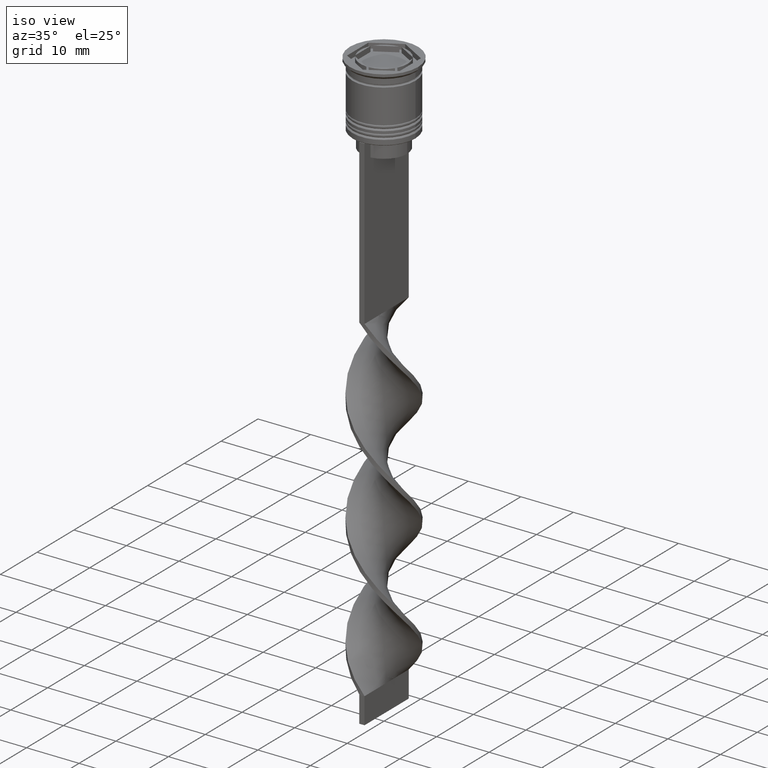
[diagram: clean part render]
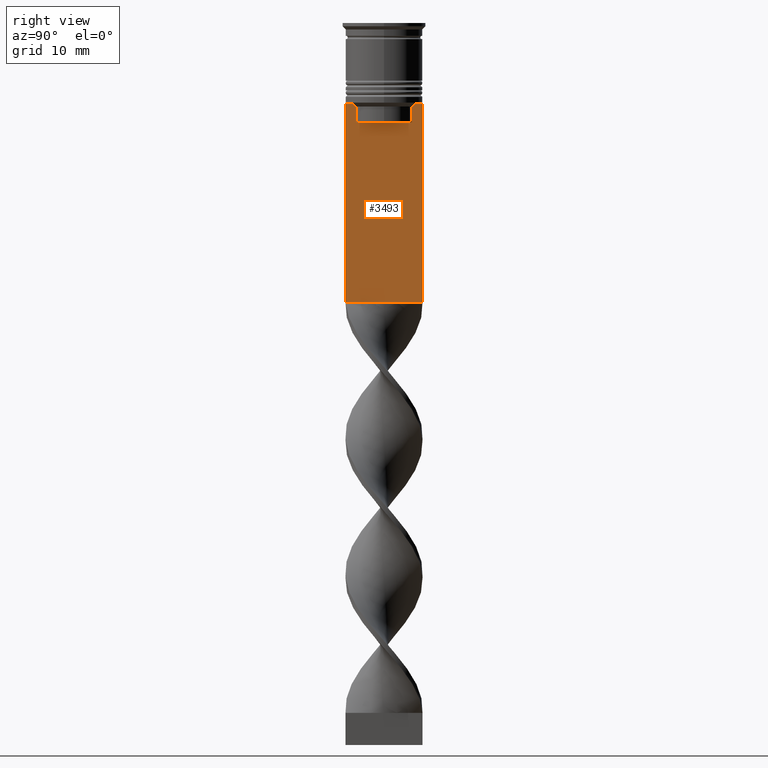
[diagram: tour spotlight — one face highlighted and labeled with its STEP entity id]
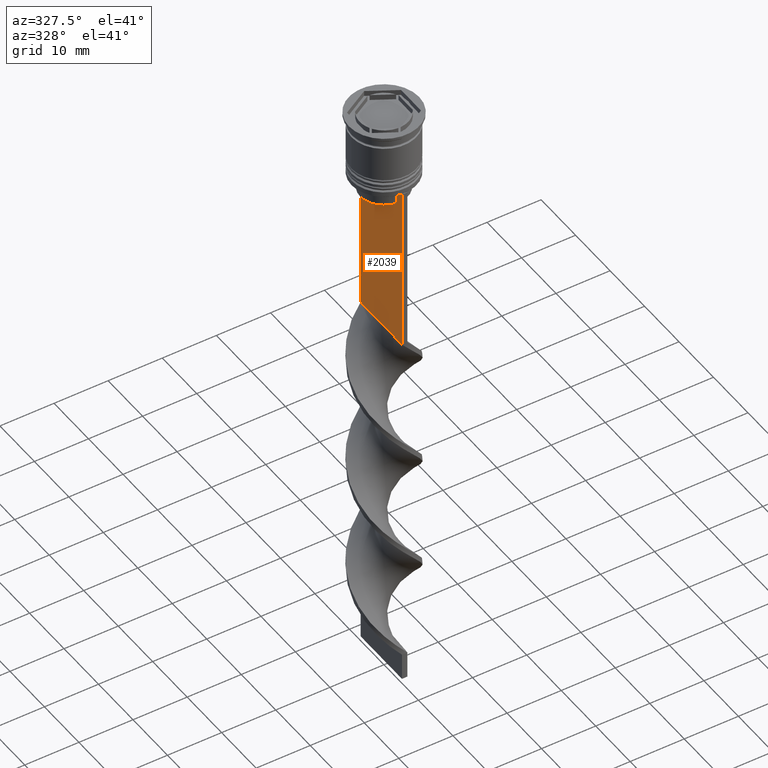
[diagram: tour spotlight — one face highlighted and labeled with its STEP entity id]
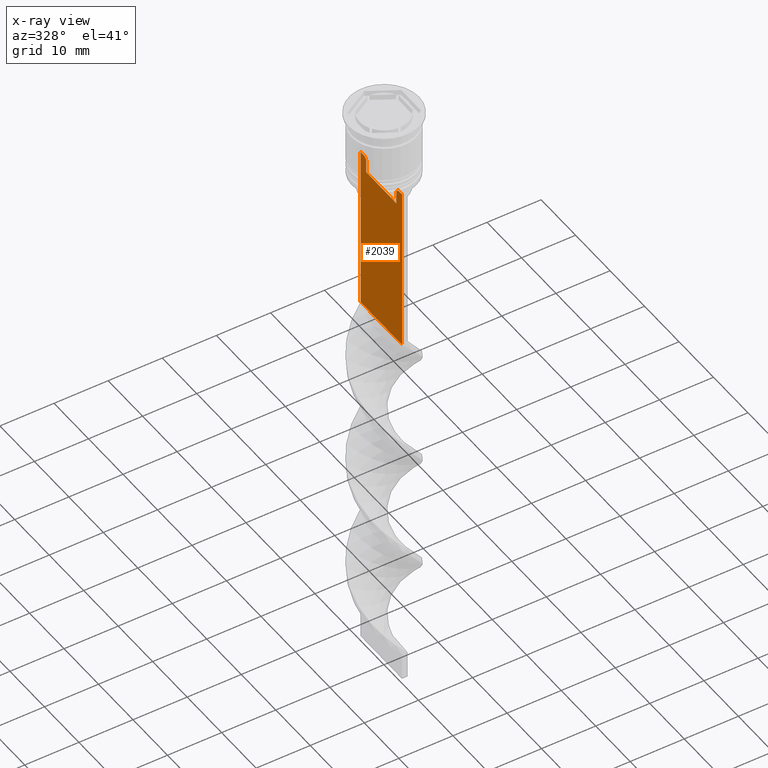
[diagram: x-ray of the same camera — body ghosted, this tour face saturated]
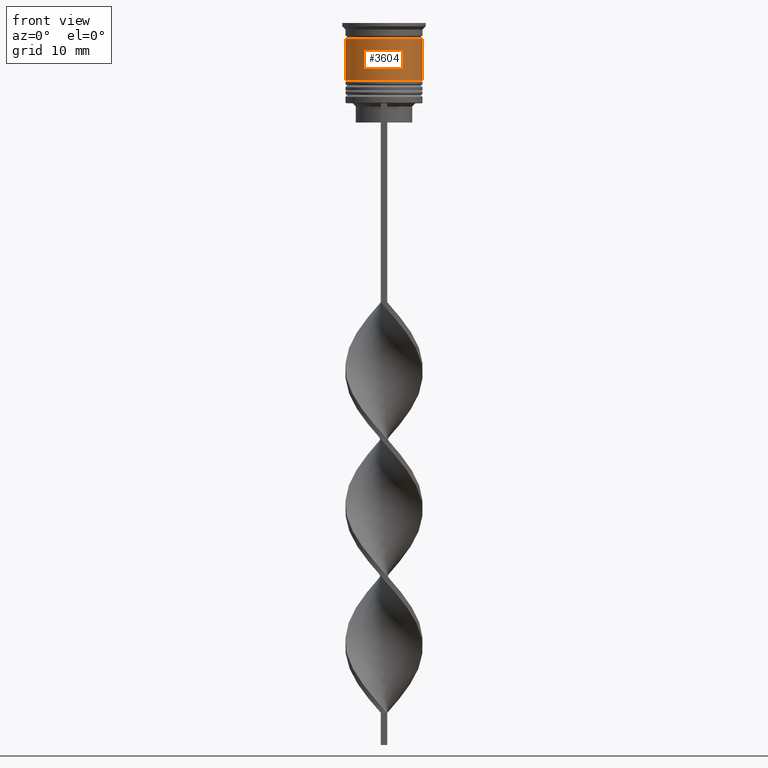
[diagram: tour spotlight — one face highlighted and labeled with its STEP entity id]
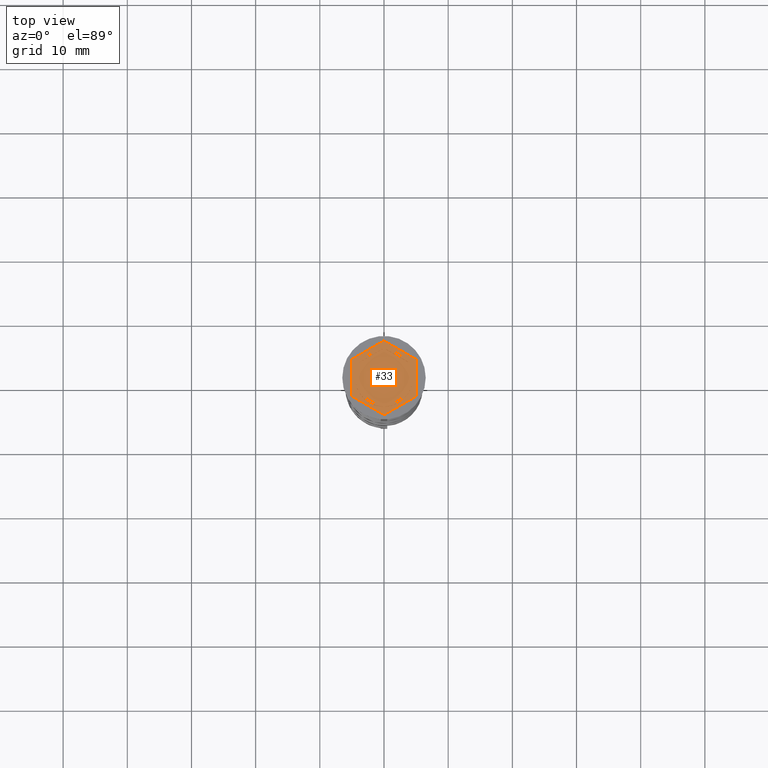
[diagram: tour spotlight — one face highlighted and labeled with its STEP entity id]
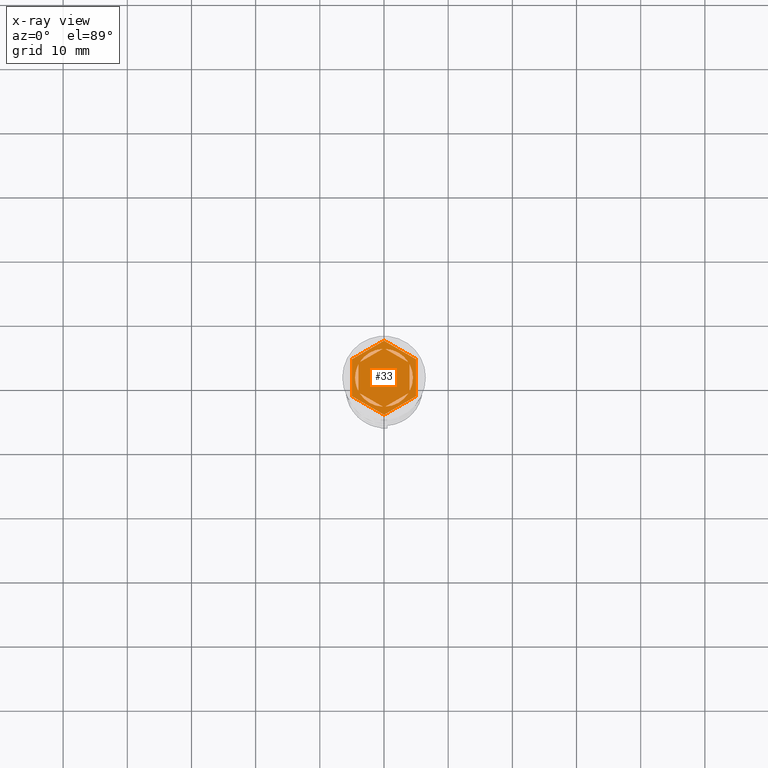
[diagram: x-ray of the same camera — body ghosted, this tour face saturated]
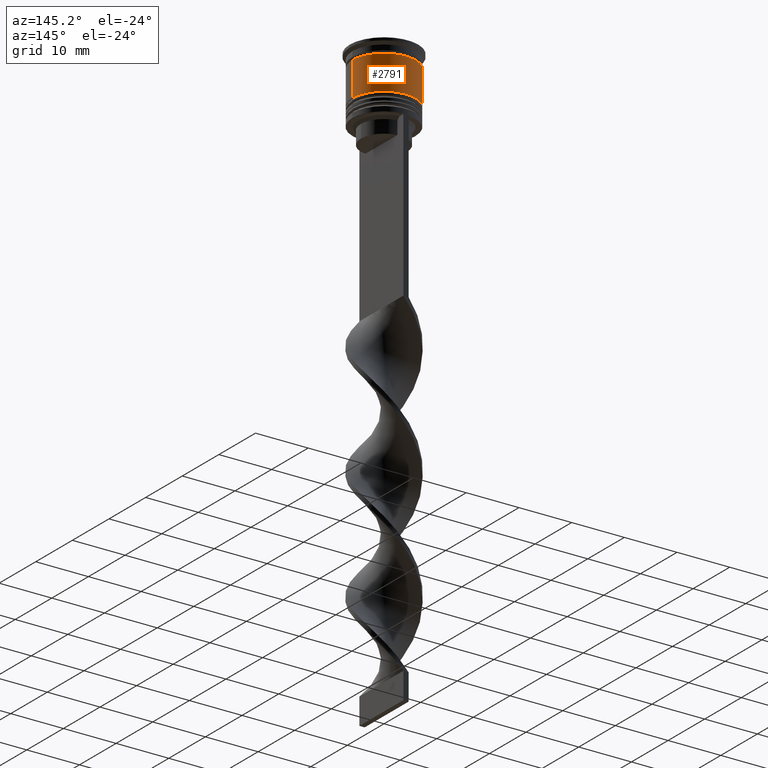
[diagram: tour spotlight — one face highlighted and labeled with its STEP entity id]
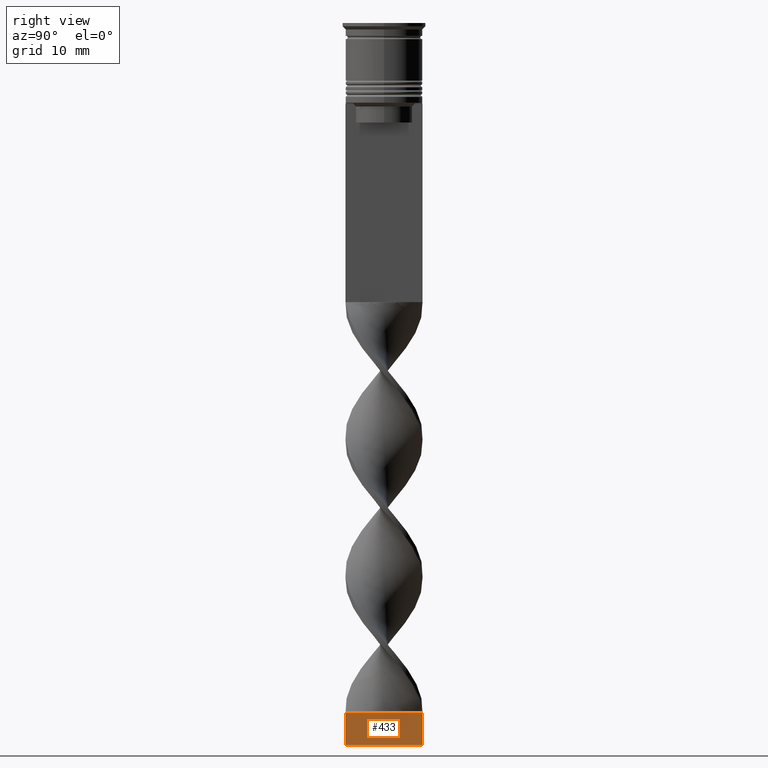
[diagram: tour spotlight — one face highlighted and labeled with its STEP entity id]
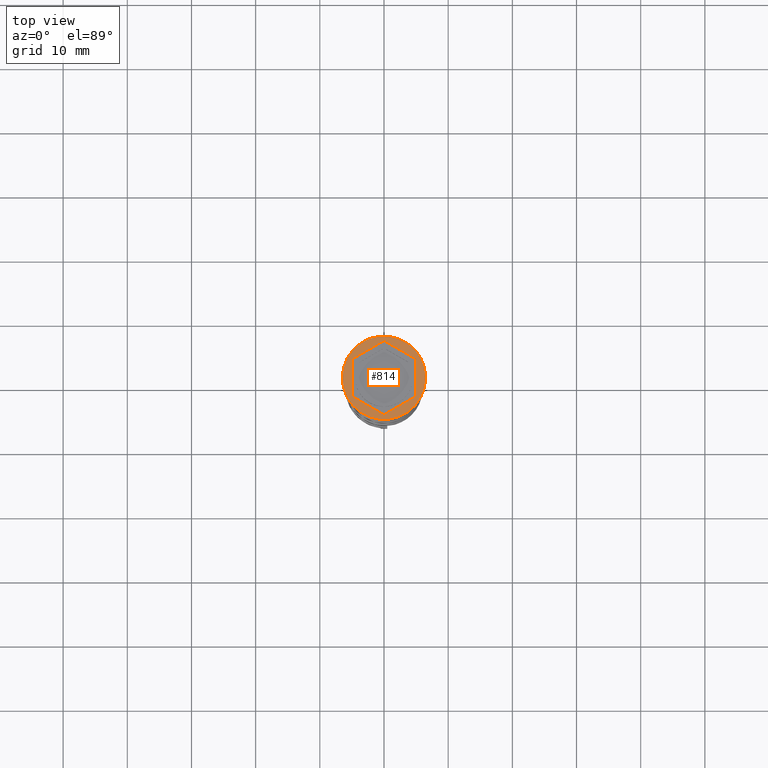
[diagram: tour spotlight — one face highlighted and labeled with its STEP entity id]
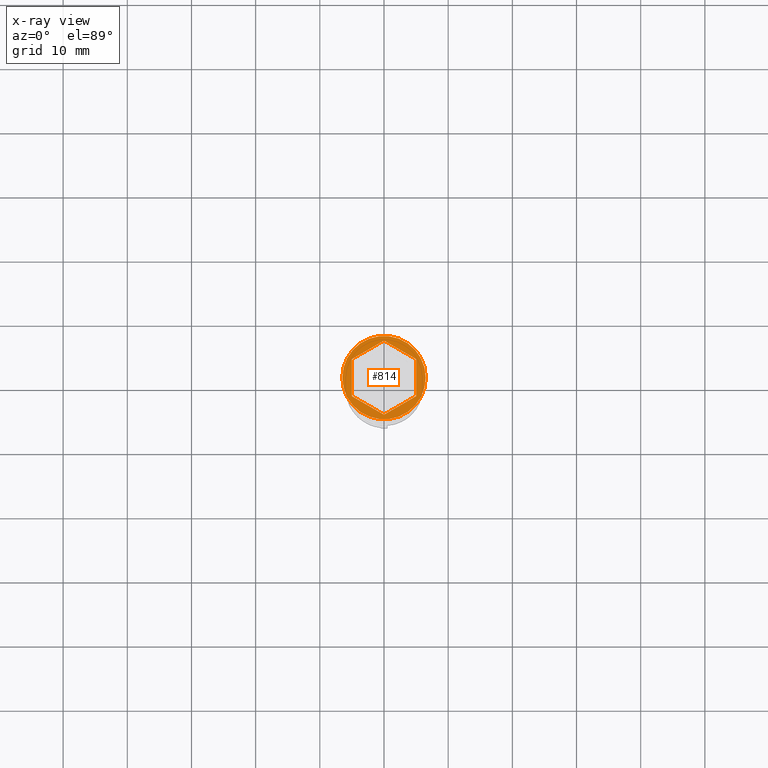
[diagram: x-ray of the same camera — body ghosted, this tour face saturated]
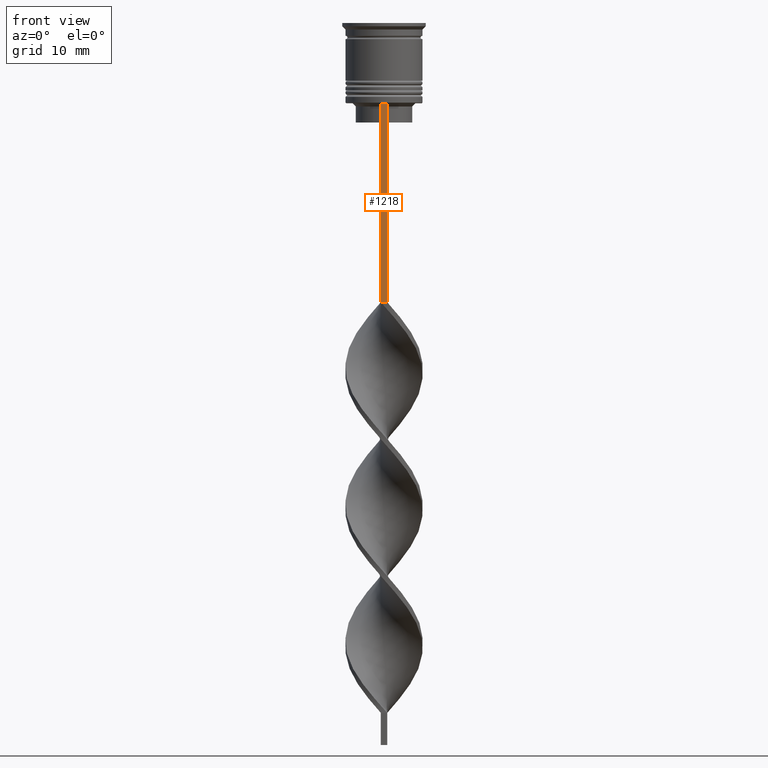
[diagram: tour spotlight — one face highlighted and labeled with its STEP entity id]
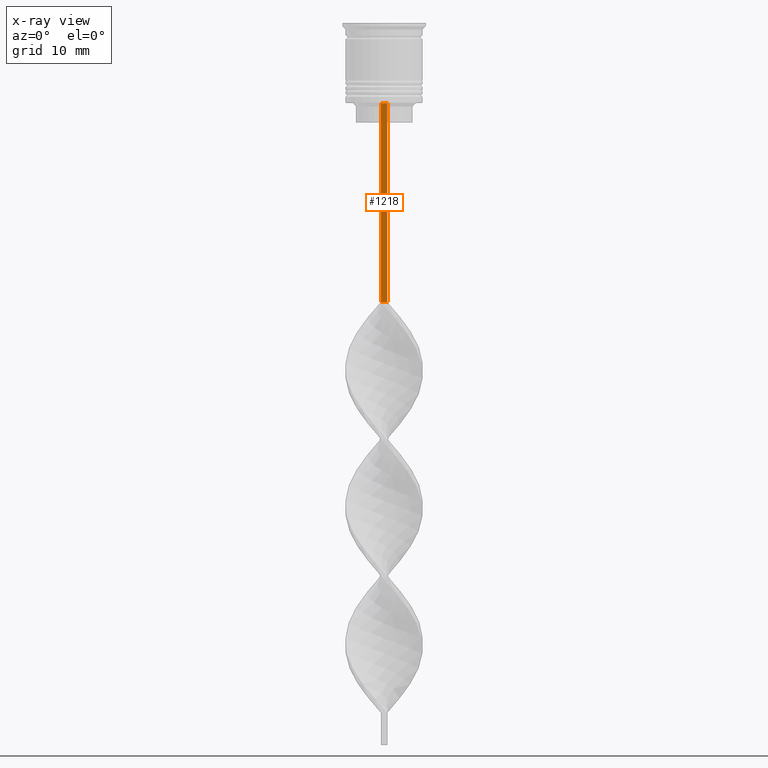
[diagram: x-ray of the same camera — body ghosted, this tour face saturated]
A machine part: a face-by-face anatomy tour. The part has 98 B-rep faces; the first image is the clean iso view, then the 8 largest visible faces are spotlighted one at a time (largest first), each with its STEP entity span.

Face 1 — right view, entity #3493. In plain terms, the highlighted planar face has unit normal (-1, 0, 0).
Definition (entity closure, byte-faithful):
#77 = DIRECTION ( 'NONE',  ( 0.000000000000000000, -1.000000000000000000, 0.000000000000000000 ) ) ;
#88 = EDGE_CURVE ( 'NONE', #701, #3278, #2685, .T. ) ;
#134 = LINE ( 'NONE', #2367, #2141 ) ;
#199 = DIRECTION ( 'NONE',  ( 0.000000000000000000, 1.000000000000000000, 0.000000000000000000 ) ) ;
#423 = VERTEX_POINT ( 'NONE', #639 ) ;
#448 = DIRECTION ( 'NONE',  ( 0.000000000000000000, 0.000000000000000000, -1.000000000000000000 ) ) ;
#468 = CARTESIAN_POINT ( 'NONE',  ( 0.5000000000000002220, -4.371498598878878816, -15.50000000000000000 ) ) ;
#494 = CARTESIAN_POINT ( 'NONE',  ( 0.5000000000000002220, 6.000000000000000888, -43.50000000000000000 ) ) ;
#570 = ORIENTED_EDGE ( 'NONE', *, *, #2025, .T. ) ;
#593 = DIRECTION ( 'NONE',  ( -0.000000000000000000, -0.000000000000000000, 1.000000000000000000 ) ) ;
#621 = LINE ( 'NONE', #1778, #1521 ) ;
#639 = CARTESIAN_POINT ( 'NONE',  ( 0.5000000000000002220, 4.371498598878878816, -13.00000000000000178 ) ) ;
#673 = EDGE_CURVE ( 'NONE', #1696, #880, #621, .T. ) ;
#676 = CARTESIAN_POINT ( 'NONE',  ( 0.5000000000000002220, 6.000000000000000888, -12.50000000000000000 ) ) ;
#701 = VERTEX_POINT ( 'NONE', #2845 ) ;
#727 = CARTESIAN_POINT ( 'NONE',  ( 0.5000000000000002220, -6.000000000000000000, -43.50000000000000000 ) ) ;
#794 = VERTEX_POINT ( 'NONE', #1265 ) ;
#811 = CARTESIAN_POINT ( 'NONE',  ( 0.5000000000000002220, -4.874423042781576676, -12.50000000000000000 ) ) ;
#828 = CARTESIAN_POINT ( 'NONE',  ( 0.5000000000000002220, 4.371498598878878816, -13.00000000000000178 ) ) ;
#840 = VERTEX_POINT ( 'NONE', #3489 ) ;
#852 = EDGE_CURVE ( 'NONE', #1319, #1343, #2669, .T. ) ;
#853 = AXIS2_PLACEMENT_3D ( 'NONE', #1275, #2967, #3200 ) ;
#865 = ORIENTED_EDGE ( 'NONE', *, *, #3085, .T. ) ;
#880 = VERTEX_POINT ( 'NONE', #1585 ) ;
#923 = LINE ( 'NONE', #2422, #1479 ) ;
#930 = VECTOR ( 'NONE', #2922, 1000.000000000000000 ) ;
#1091 = CARTESIAN_POINT ( 'NONE',  ( 0.5000000000000002220, -4.539195586926423331, -12.83338928448044314 ) ) ;
#1109 = CARTESIAN_POINT ( 'NONE',  ( 0.5000000000000002220, 4.874423042781576676, -12.50000000000000000 ) ) ;
#1195 = CARTESIAN_POINT ( 'NONE',  ( 0.5000000000000002220, -4.874423042781576676, -12.50000000000000000 ) ) ;
#1217 = DIRECTION ( 'NONE',  ( 0.000000000000000000, -1.000000000000000000, 0.000000000000000000 ) ) ;
#1265 = CARTESIAN_POINT ( 'NONE',  ( 0.5000000000000002220, 5.878775382679627626, -12.50000000000000000 ) ) ;
#1275 = CARTESIAN_POINT ( 'NONE',  ( 0.5000000000000002220, -6.000000000000000000, -0.4584054212077061097 ) ) ;
#1319 = VERTEX_POINT ( 'NONE', #2149 ) ;
#1329 = CARTESIAN_POINT ( 'NONE',  ( 0.5000000000000002220, -6.000000000000000000, -0.4584054212077061097 ) ) ;
#1335 = EDGE_CURVE ( 'NONE', #2219, #3278, #1604, .T. ) ;
#1341 = EDGE_CURVE ( 'NONE', #880, #701, #1752, .T. ) ;
#1343 = VERTEX_POINT ( 'NONE', #468 ) ;
#1369 = ORIENTED_EDGE ( 'NONE', *, *, #1341, .T. ) ;
#1398 = EDGE_CURVE ( 'NONE', #423, #1319, #923, .T. ) ;
#1424 = ORIENTED_EDGE ( 'NONE', *, *, #1398, .T. ) ;
#1455 = VERTEX_POINT ( 'NONE', #1195 ) ;
#1479 = VECTOR ( 'NONE', #448, 1000.000000000000000 ) ;
#1488 = VECTOR ( 'NONE', #2441, 1000.000000000000000 ) ;
#1521 = VECTOR ( 'NONE', #77, 1000.000000000000000 ) ;
#1585 = CARTESIAN_POINT ( 'NONE',  ( 0.5000000000000002220, -6.000000000000000000, -12.50000000000000000 ) ) ;
#1602 = EDGE_CURVE ( 'NONE', #794, #2511, #134, .T. ) ;
#1604 = LINE ( 'NONE', #2706, #3233 ) ;
#1696 = VERTEX_POINT ( 'NONE', #3004 ) ;
#1752 = LINE ( 'NONE', #1329, #1488 ) ;
#1778 = CARTESIAN_POINT ( 'NONE',  ( 0.5000000000000002220, -6.000000000000000000, -12.50000000000000000 ) ) ;
#1821 = B_SPLINE_CURVE_WITH_KNOTS ( 'NONE', 3,
 ( #2494, #1091, #3311, #811 ),
 .UNSPECIFIED., .F., .F.,
 ( 4, 4 ),
 ( 0.02089901220910808308, 0.02161421017310286019 ),
 .UNSPECIFIED. ) ;
#1995 = EDGE_CURVE ( 'NONE', #1343, #840, #2761, .T. ) ;
#2008 = LINE ( 'NONE', #2024, #2959 ) ;
#2024 = CARTESIAN_POINT ( 'NONE',  ( 0.5000000000000002220, -6.000000000000000000, -12.50000000000000000 ) ) ;
#2025 = EDGE_CURVE ( 'NONE', #840, #1455, #1821, .T. ) ;
#2032 = ORIENTED_EDGE ( 'NONE', *, *, #1335, .F. ) ;
#2111 = DIRECTION ( 'NONE',  ( 0.000000000000000000, 0.000000000000000000, -1.000000000000000000 ) ) ;
#2141 = VECTOR ( 'NONE', #3202, 1000.000000000000000 ) ;
#2149 = CARTESIAN_POINT ( 'NONE',  ( 0.5000000000000002220, 4.371498598878878816, -15.50000000000000000 ) ) ;
#2219 = VERTEX_POINT ( 'NONE', #676 ) ;
#2222 = CARTESIAN_POINT ( 'NONE',  ( 0.5000000000000002220, 4.539195634199896467, -12.83338923751318816 ) ) ;
#2349 = ORIENTED_EDGE ( 'NONE', *, *, #2836, .T. ) ;
#2367 = CARTESIAN_POINT ( 'NONE',  ( 0.5000000000000002220, -6.000000000000000000, -12.50000000000000000 ) ) ;
#2381 = DIRECTION ( 'NONE',  ( 0.000000000000000000, -1.000000000000000000, 0.000000000000000000 ) ) ;
#2422 = CARTESIAN_POINT ( 'NONE',  ( 0.5000000000000002220, 4.371498598878878816, 0.000000000000000000 ) ) ;
#2441 = DIRECTION ( 'NONE',  ( 0.000000000000000000, 0.000000000000000000, -1.000000000000000000 ) ) ;
#2480 = CARTESIAN_POINT ( 'NONE',  ( 0.5000000000000002220, 4.706831415367288329, -12.66671683478479160 ) ) ;
#2494 = CARTESIAN_POINT ( 'NONE',  ( 0.5000000000000002220, -4.371498598878878816, -13.00000000000000178 ) ) ;
#2511 = VERTEX_POINT ( 'NONE', #3585 ) ;
#2547 = ORIENTED_EDGE ( 'NONE', *, *, #673, .T. ) ;
#2612 = VECTOR ( 'NONE', #199, 1000.000000000000000 ) ;
#2648 = LINE ( 'NONE', #2882, #3302 ) ;
#2666 = ORIENTED_EDGE ( 'NONE', *, *, #88, .T. ) ;
#2669 = LINE ( 'NONE', #2689, #930 ) ;
#2680 = EDGE_LOOP ( 'NONE', ( #2910, #3457, #1424, #3037, #3199, #570, #865, #2547, #1369, #2666, #2032, #2349 ) ) ;
#2685 = LINE ( 'NONE', #727, #2612 ) ;
#2689 = CARTESIAN_POINT ( 'NONE',  ( 0.5000000000000002220, 4.399999999999999467, -15.50000000000000000 ) ) ;
#2706 = CARTESIAN_POINT ( 'NONE',  ( 0.5000000000000002220, 6.000000000000000888, -0.4584054212077061097 ) ) ;
#2761 = LINE ( 'NONE', #3094, #3181 ) ;
#2790 = B_SPLINE_CURVE_WITH_KNOTS ( 'NONE', 3,
 ( #1109, #2480, #2222, #828 ),
 .UNSPECIFIED., .F., .F.,
 ( 4, 4 ),
 ( 0.008336552452178421987, 0.009045730124312839626 ),
 .UNSPECIFIED. ) ;
#2836 = EDGE_CURVE ( 'NONE', #2219, #794, #2648, .T. ) ;
#2845 = CARTESIAN_POINT ( 'NONE',  ( 0.5000000000000002220, -5.999999999999999112, -43.50000000000000000 ) ) ;
#2882 = CARTESIAN_POINT ( 'NONE',  ( 0.5000000000000002220, -6.000000000000000000, -12.50000000000000000 ) ) ;
#2910 = ORIENTED_EDGE ( 'NONE', *, *, #1602, .T. ) ;
#2922 = DIRECTION ( 'NONE',  ( 0.000000000000000000, -1.000000000000000000, 0.000000000000000000 ) ) ;
#2959 = VECTOR ( 'NONE', #1217, 1000.000000000000000 ) ;
#2967 = DIRECTION ( 'NONE',  ( -1.000000000000000000, 0.000000000000000000, 0.000000000000000000 ) ) ;
#3004 = CARTESIAN_POINT ( 'NONE',  ( 0.5000000000000002220, -5.878775382679627626, -12.50000000000000000 ) ) ;
#3037 = ORIENTED_EDGE ( 'NONE', *, *, #852, .T. ) ;
#3085 = EDGE_CURVE ( 'NONE', #1455, #1696, #2008, .T. ) ;
#3094 = CARTESIAN_POINT ( 'NONE',  ( 0.5000000000000002220, -4.371498598878878816, 0.000000000000000000 ) ) ;
#3181 = VECTOR ( 'NONE', #593, 1000.000000000000000 ) ;
#3199 = ORIENTED_EDGE ( 'NONE', *, *, #1995, .T. ) ;
#3200 = DIRECTION ( 'NONE',  ( 0.000000000000000000, 0.000000000000000000, 1.000000000000000000 ) ) ;
#3202 = DIRECTION ( 'NONE',  ( 0.000000000000000000, -1.000000000000000000, 0.000000000000000000 ) ) ;
#3218 = FACE_OUTER_BOUND ( 'NONE', #2680, .T. ) ;
#3233 = VECTOR ( 'NONE', #2111, 1000.000000000000000 ) ;
#3278 = VERTEX_POINT ( 'NONE', #494 ) ;
#3302 = VECTOR ( 'NONE', #2381, 1000.000000000000000 ) ;
#3311 = CARTESIAN_POINT ( 'NONE',  ( 0.5000000000000002220, -4.706831372970962768, -12.66671687695981774 ) ) ;
#3396 = EDGE_CURVE ( 'NONE', #2511, #423, #2790, .T. ) ;
#3457 = ORIENTED_EDGE ( 'NONE', *, *, #3396, .T. ) ;
#3489 = CARTESIAN_POINT ( 'NONE',  ( 0.5000000000000002220, -4.371498598878878816, -13.00000000000000178 ) ) ;
#3493 = ADVANCED_FACE ( 'NONE', ( #3218 ), #3552, .F. ) ;
#3552 = PLANE ( 'NONE',  #853 ) ;
#3585 = CARTESIAN_POINT ( 'NONE',  ( 0.5000000000000002220, 4.874423042781576676, -12.50000000000000000 ) ) ;

Face 2 — auxiliary view, entity #2039. An x-ray twin of the same camera follows (body ghosted, this face saturated) — the face is partly hidden behind the body. In plain terms, the highlighted planar face has unit normal (-1, 0, 0).
Definition (entity closure, byte-faithful):
#34 = VERTEX_POINT ( 'NONE', #3238 ) ;
#62 = VECTOR ( 'NONE', #2605, 1000.000000000000000 ) ;
#115 = CARTESIAN_POINT ( 'NONE',  ( -0.4999999999999997780, -4.874423042781576676, -12.50000000000000000 ) ) ;
#150 = ORIENTED_EDGE ( 'NONE', *, *, #545, .F. ) ;
#158 = EDGE_CURVE ( 'NONE', #779, #3057, #2919, .T. ) ;
#169 = VERTEX_POINT ( 'NONE', #401 ) ;
#210 = CARTESIAN_POINT ( 'NONE',  ( -0.4999999999999997780, 4.371498598878878816, -15.50000000000000000 ) ) ;
#244 = VECTOR ( 'NONE', #821, 1000.000000000000000 ) ;
#270 = CARTESIAN_POINT ( 'NONE',  ( -0.4999999999999997780, -4.371498598878878816, 0.000000000000000000 ) ) ;
#287 = DIRECTION ( 'NONE',  ( 0.000000000000000000, 0.000000000000000000, 1.000000000000000000 ) ) ;
#316 = CARTESIAN_POINT ( 'NONE',  ( -0.4999999999999997780, -4.371498598878878816, -15.50000000000000000 ) ) ;
#381 = CARTESIAN_POINT ( 'NONE',  ( -0.4999999999999997780, -4.706831372970964544, -12.66671687695981596 ) ) ;
#386 = CARTESIAN_POINT ( 'NONE',  ( -0.4999999999999997780, 4.371498598878878816, -13.00000000000000178 ) ) ;
#396 = CARTESIAN_POINT ( 'NONE',  ( -0.4999999999999997780, -6.000000000000000000, -43.50000000000000000 ) ) ;
#401 = CARTESIAN_POINT ( 'NONE',  ( -0.4999999999999997780, 4.371498598878878816, -13.00000000000000178 ) ) ;
#413 = CARTESIAN_POINT ( 'NONE',  ( -0.4999999999999997780, -4.371498598878878816, -13.00000000000000178 ) ) ;
#415 = EDGE_CURVE ( 'NONE', #34, #1175, #2606, .T. ) ;
#481 = ORIENTED_EDGE ( 'NONE', *, *, #2116, .F. ) ;
#525 = DIRECTION ( 'NONE',  ( -0.000000000000000000, -0.000000000000000000, 1.000000000000000000 ) ) ;
#545 = EDGE_CURVE ( 'NONE', #1789, #722, #1959, .T. ) ;
#552 = DIRECTION ( 'NONE',  ( -1.000000000000000000, 0.000000000000000000, 0.000000000000000000 ) ) ;
#555 = ORIENTED_EDGE ( 'NONE', *, *, #2279, .F. ) ;
#616 = B_SPLINE_CURVE_WITH_KNOTS ( 'NONE', 3,
 ( #1790, #2621, #381, #115 ),
 .UNSPECIFIED., .F., .F.,
 ( 4, 4 ),
 ( 0.02089901220910806920, 0.02161421017310284978 ),
 .UNSPECIFIED. ) ;
#655 = DIRECTION ( 'NONE',  ( 0.000000000000000000, -1.000000000000000000, 0.000000000000000000 ) ) ;
#688 = CARTESIAN_POINT ( 'NONE',  ( -0.4999999999999997780, 6.000000000000000888, -43.50000000000000000 ) ) ;
#708 = LINE ( 'NONE', #1834, #62 ) ;
#722 = VERTEX_POINT ( 'NONE', #316 ) ;
#779 = VERTEX_POINT ( 'NONE', #2902 ) ;
#821 = DIRECTION ( 'NONE',  ( 0.000000000000000000, -1.000000000000000000, 0.000000000000000000 ) ) ;
#851 = DIRECTION ( 'NONE',  ( 0.000000000000000000, 0.000000000000000000, -1.000000000000000000 ) ) ;
#856 = CARTESIAN_POINT ( 'NONE',  ( -0.4999999999999997780, -6.000000000000000000, -12.50000000000000000 ) ) ;
#949 = DIRECTION ( 'NONE',  ( 0.000000000000000000, -1.000000000000000000, 0.000000000000000000 ) ) ;
#964 = DIRECTION ( 'NONE',  ( 0.000000000000000000, 1.000000000000000000, 0.000000000000000000 ) ) ;
#965 = VERTEX_POINT ( 'NONE', #2721 ) ;
#976 = VECTOR ( 'NONE', #3068, 1000.000000000000000 ) ;
#986 = ORIENTED_EDGE ( 'NONE', *, *, #415, .F. ) ;
#1011 = VERTEX_POINT ( 'NONE', #3011 ) ;
#1069 = EDGE_CURVE ( 'NONE', #2541, #965, #1738, .T. ) ;
#1175 = VERTEX_POINT ( 'NONE', #2372 ) ;
#1205 = CARTESIAN_POINT ( 'NONE',  ( -0.4999999999999997780, -6.000000000000000000, -12.50000000000000000 ) ) ;
#1248 = ORIENTED_EDGE ( 'NONE', *, *, #2196, .F. ) ;
#1261 = EDGE_CURVE ( 'NONE', #1011, #3249, #708, .T. ) ;
#1317 = ORIENTED_EDGE ( 'NONE', *, *, #2688, .F. ) ;
#1467 = CARTESIAN_POINT ( 'NONE',  ( -0.4999999999999997780, 4.539195634199897356, -12.83338923751318816 ) ) ;
#1560 = CARTESIAN_POINT ( 'NONE',  ( -0.4999999999999997780, -6.000000000000000000, -12.50000000000000000 ) ) ;
#1565 = AXIS2_PLACEMENT_3D ( 'NONE', #1934, #552, #287 ) ;
#1667 = EDGE_CURVE ( 'NONE', #965, #3249, #2057, .T. ) ;
#1738 = LINE ( 'NONE', #2009, #2565 ) ;
#1744 = CARTESIAN_POINT ( 'NONE',  ( -0.4999999999999997780, 4.874423042781576676, -12.50000000000000000 ) ) ;
#1789 = VERTEX_POINT ( 'NONE', #210 ) ;
#1790 = CARTESIAN_POINT ( 'NONE',  ( -0.4999999999999997780, -4.371498598878878816, -13.00000000000000178 ) ) ;
#1796 = VECTOR ( 'NONE', #2865, 1000.000000000000000 ) ;
#1797 = CARTESIAN_POINT ( 'NONE',  ( -0.4999999999999997780, -6.000000000000000000, -12.50000000000000000 ) ) ;
#1810 = ORIENTED_EDGE ( 'NONE', *, *, #1920, .F. ) ;
#1813 = VECTOR ( 'NONE', #655, 1000.000000000000000 ) ;
#1834 = CARTESIAN_POINT ( 'NONE',  ( -0.4999999999999997780, 6.000000000000000888, -0.4584054212077061097 ) ) ;
#1920 = EDGE_CURVE ( 'NONE', #722, #3563, #2546, .T. ) ;
#1934 = CARTESIAN_POINT ( 'NONE',  ( -0.4999999999999997780, -6.000000000000000000, -0.4584054212077061097 ) ) ;
#1959 = LINE ( 'NONE', #3066, #244 ) ;
#1993 = ORIENTED_EDGE ( 'NONE', *, *, #3172, .F. ) ;
#2009 = CARTESIAN_POINT ( 'NONE',  ( -0.4999999999999997780, -6.000000000000000000, -0.4584054212077061097 ) ) ;
#2039 = ADVANCED_FACE ( 'NONE', ( #3020 ), #2233, .T. ) ;
#2048 = CARTESIAN_POINT ( 'NONE',  ( -0.4999999999999997780, 4.706831415367290106, -12.66671683478478982 ) ) ;
#2057 = LINE ( 'NONE', #396, #2716 ) ;
#2095 = EDGE_LOOP ( 'NONE', ( #555, #986, #1317, #3359, #2098, #2311, #481, #2221, #1993, #1810, #150, #1248 ) ) ;
#2098 = ORIENTED_EDGE ( 'NONE', *, *, #1667, .F. ) ;
#2116 = EDGE_CURVE ( 'NONE', #3057, #2541, #3018, .T. ) ;
#2195 = VECTOR ( 'NONE', #3570, 1000.000000000000000 ) ;
#2196 = EDGE_CURVE ( 'NONE', #169, #1789, #2811, .T. ) ;
#2221 = ORIENTED_EDGE ( 'NONE', *, *, #158, .F. ) ;
#2233 = PLANE ( 'NONE',  #1565 ) ;
#2279 = EDGE_CURVE ( 'NONE', #1175, #169, #2510, .T. ) ;
#2311 = ORIENTED_EDGE ( 'NONE', *, *, #1069, .F. ) ;
#2372 = CARTESIAN_POINT ( 'NONE',  ( -0.4999999999999997780, 4.874423042781576676, -12.50000000000000000 ) ) ;
#2462 = CARTESIAN_POINT ( 'NONE',  ( -0.4999999999999997780, 4.371498598878878816, 0.000000000000000000 ) ) ;
#2510 = B_SPLINE_CURVE_WITH_KNOTS ( 'NONE', 3,
 ( #1744, #2048, #1467, #386 ),
 .UNSPECIFIED., .F., .F.,
 ( 4, 4 ),
 ( 0.008336552452178418518, 0.009045730124312837891 ),
 .UNSPECIFIED. ) ;
#2541 = VERTEX_POINT ( 'NONE', #856 ) ;
#2546 = LINE ( 'NONE', #270, #3062 ) ;
#2565 = VECTOR ( 'NONE', #851, 1000.000000000000000 ) ;
#2605 = DIRECTION ( 'NONE',  ( 0.000000000000000000, 0.000000000000000000, -1.000000000000000000 ) ) ;
#2606 = LINE ( 'NONE', #1797, #1813 ) ;
#2621 = CARTESIAN_POINT ( 'NONE',  ( -0.4999999999999997780, -4.539195586926424220, -12.83338928448044136 ) ) ;
#2688 = EDGE_CURVE ( 'NONE', #1011, #34, #2846, .T. ) ;
#2716 = VECTOR ( 'NONE', #964, 1000.000000000000000 ) ;
#2721 = CARTESIAN_POINT ( 'NONE',  ( -0.4999999999999997780, -6.000000000000000000, -43.50000000000000000 ) ) ;
#2759 = CARTESIAN_POINT ( 'NONE',  ( -0.4999999999999997780, -6.000000000000000000, -12.50000000000000000 ) ) ;
#2786 = CARTESIAN_POINT ( 'NONE',  ( -0.4999999999999997780, -5.878775382679627626, -12.50000000000000000 ) ) ;
#2811 = LINE ( 'NONE', #2462, #2195 ) ;
#2846 = LINE ( 'NONE', #1205, #1796 ) ;
#2865 = DIRECTION ( 'NONE',  ( 0.000000000000000000, -1.000000000000000000, 0.000000000000000000 ) ) ;
#2902 = CARTESIAN_POINT ( 'NONE',  ( -0.4999999999999997780, -4.874423042781576676, -12.50000000000000000 ) ) ;
#2919 = LINE ( 'NONE', #1560, #3259 ) ;
#3011 = CARTESIAN_POINT ( 'NONE',  ( -0.4999999999999997780, 6.000000000000001776, -12.50000000000000000 ) ) ;
#3018 = LINE ( 'NONE', #2759, #976 ) ;
#3020 = FACE_OUTER_BOUND ( 'NONE', #2095, .T. ) ;
#3057 = VERTEX_POINT ( 'NONE', #2786 ) ;
#3062 = VECTOR ( 'NONE', #525, 1000.000000000000000 ) ;
#3066 = CARTESIAN_POINT ( 'NONE',  ( -0.4999999999999997780, 4.399999999999999467, -15.50000000000000000 ) ) ;
#3068 = DIRECTION ( 'NONE',  ( 0.000000000000000000, -1.000000000000000000, 0.000000000000000000 ) ) ;
#3172 = EDGE_CURVE ( 'NONE', #3563, #779, #616, .T. ) ;
#3238 = CARTESIAN_POINT ( 'NONE',  ( -0.4999999999999997780, 5.878775382679627626, -12.50000000000000000 ) ) ;
#3249 = VERTEX_POINT ( 'NONE', #688 ) ;
#3259 = VECTOR ( 'NONE', #949, 1000.000000000000000 ) ;
#3359 = ORIENTED_EDGE ( 'NONE', *, *, #1261, .T. ) ;
#3563 = VERTEX_POINT ( 'NONE', #413 ) ;
#3570 = DIRECTION ( 'NONE',  ( 0.000000000000000000, 0.000000000000000000, -1.000000000000000000 ) ) ;

Face 3 — front view, entity #3604. In plain terms, the highlighted cylindrical surface (partial cylindrical patch) has radius 6 mm, axis along (-0, -0, 1).
Definition (entity closure, byte-faithful):
#63 = CARTESIAN_POINT ( 'NONE',  ( -6.000000000000001776, 7.347880794884121708E-16, -9.000000000000001776 ) ) ;
#69 = ORIENTED_EDGE ( 'NONE', *, *, #2133, .T. ) ;
#160 = LINE ( 'NONE', #1245, #2683 ) ;
#209 = VERTEX_POINT ( 'NONE', #644 ) ;
#368 = CARTESIAN_POINT ( 'NONE',  ( 5.999999999999999112, 0.000000000000000000, -2.500000000000000444 ) ) ;
#419 = EDGE_CURVE ( 'NONE', #209, #687, #911, .T. ) ;
#484 = DIRECTION ( 'NONE',  ( -0.000000000000000000, -0.000000000000000000, 1.000000000000000000 ) ) ;
#568 = DIRECTION ( 'NONE',  ( 1.000000000000000000, 0.000000000000000000, 0.000000000000000000 ) ) ;
#644 = CARTESIAN_POINT ( 'NONE',  ( 6.000000000000000888, 0.000000000000000000, -9.000000000000001776 ) ) ;
#664 = DIRECTION ( 'NONE',  ( -0.000000000000000000, -0.000000000000000000, 1.000000000000000000 ) ) ;
#687 = VERTEX_POINT ( 'NONE', #368 ) ;
#790 = CARTESIAN_POINT ( 'NONE',  ( 0.000000000000000000, 0.000000000000000000, 0.000000000000000000 ) ) ;
#808 = FACE_OUTER_BOUND ( 'NONE', #3039, .T. ) ;
#809 = EDGE_CURVE ( 'NONE', #2576, #3312, #160, .T. ) ;
#911 = LINE ( 'NONE', #2028, #1399 ) ;
#925 = DIRECTION ( 'NONE',  ( 1.000000000000000000, 0.000000000000000000, 0.000000000000000000 ) ) ;
#1245 = CARTESIAN_POINT ( 'NONE',  ( -6.000000000000000000, 7.347880794884119736E-16, 0.000000000000000000 ) ) ;
#1322 = ORIENTED_EDGE ( 'NONE', *, *, #1514, .F. ) ;
#1399 = VECTOR ( 'NONE', #3136, 1000.000000000000000 ) ;
#1437 = ORIENTED_EDGE ( 'NONE', *, *, #419, .T. ) ;
#1509 = AXIS2_PLACEMENT_3D ( 'NONE', #790, #2778, #3358 ) ;
#1514 = EDGE_CURVE ( 'NONE', #3312, #687, #1776, .T. ) ;
#1628 = ORIENTED_EDGE ( 'NONE', *, *, #809, .F. ) ;
#1776 = CIRCLE ( 'NONE', #2434, 5.999999999999999112 ) ;
#1904 = CARTESIAN_POINT ( 'NONE',  ( -5.999999999999999112, 7.347880794884118750E-16, -2.500000000000000444 ) ) ;
#1930 = CARTESIAN_POINT ( 'NONE',  ( 0.000000000000000000, 0.000000000000000000, -9.000000000000001776 ) ) ;
#1963 = CIRCLE ( 'NONE', #3477, 6.000000000000000888 ) ;
#2028 = CARTESIAN_POINT ( 'NONE',  ( 6.000000000000000000, 0.000000000000000000, 0.000000000000000000 ) ) ;
#2133 = EDGE_CURVE ( 'NONE', #2576, #209, #1963, .T. ) ;
#2218 = DIRECTION ( 'NONE',  ( -0.000000000000000000, -0.000000000000000000, 1.000000000000000000 ) ) ;
#2434 = AXIS2_PLACEMENT_3D ( 'NONE', #2914, #664, #925 ) ;
#2576 = VERTEX_POINT ( 'NONE', #63 ) ;
#2683 = VECTOR ( 'NONE', #484, 1000.000000000000000 ) ;
#2778 = DIRECTION ( 'NONE',  ( -0.000000000000000000, -0.000000000000000000, 1.000000000000000000 ) ) ;
#2914 = CARTESIAN_POINT ( 'NONE',  ( 0.000000000000000000, 0.000000000000000000, -2.500000000000000444 ) ) ;
#3039 = EDGE_LOOP ( 'NONE', ( #1628, #69, #1437, #1322 ) ) ;
#3136 = DIRECTION ( 'NONE',  ( -0.000000000000000000, -0.000000000000000000, 1.000000000000000000 ) ) ;
#3290 = CYLINDRICAL_SURFACE ( 'NONE', #1509, 6.000000000000000000 ) ;
#3312 = VERTEX_POINT ( 'NONE', #1904 ) ;
#3358 = DIRECTION ( 'NONE',  ( 1.000000000000000000, 0.000000000000000000, 0.000000000000000000 ) ) ;
#3477 = AXIS2_PLACEMENT_3D ( 'NONE', #1930, #2218, #568 ) ;
#3604 = ADVANCED_FACE ( 'NONE', ( #808 ), #3290, .T. ) ;

Face 4 — top view, entity #33. An x-ray twin of the same camera follows (body ghosted, this face saturated) — the face is partly hidden behind the body. In plain terms, the highlighted planar face has unit normal (0, 0, 1).
Definition (entity closure, byte-faithful):
#7 = CARTESIAN_POINT ( 'NONE',  ( 5.612359739892467248E-18, -5.773502691896257311, -1.000000000000000000 ) ) ;
#33 = ADVANCED_FACE ( 'NONE', ( #1512, #2073, #3179, #683, #412, #2636, #147 ), #2365, .T. ) ;
#36 = EDGE_CURVE ( 'NONE', #1337, #1786, #1982, .T. ) ;
#51 = VERTEX_POINT ( 'NONE', #139 ) ;
#56 = AXIS2_PLACEMENT_3D ( 'NONE', #3515, #1300, #2976 ) ;
#119 = VECTOR ( 'NONE', #1231, 1000.000000000000227 ) ;
#131 = VERTEX_POINT ( 'NONE', #1523 ) ;
#139 = CARTESIAN_POINT ( 'NONE',  ( -3.785357107135713939, -2.433325208733338130, -1.000000000000000888 ) ) ;
#147 = FACE_OUTER_BOUND ( 'NONE', #2849, .T. ) ;
#208 = EDGE_CURVE ( 'NONE', #1386, #131, #2633, .T. ) ;
#213 = EDGE_CURVE ( 'NONE', #2550, #51, #1172, .T. ) ;
#241 = CARTESIAN_POINT ( 'NONE',  ( -4.000000000000000000, -2.061552812808831625, -1.000000000000000888 ) ) ;
#248 = VERTEX_POINT ( 'NONE', #3194 ) ;
#264 = EDGE_CURVE ( 'NONE', #1136, #2156, #1208, .T. ) ;
#280 = CIRCLE ( 'NONE', #2150, 4.500000000000000888 ) ;
#284 = CARTESIAN_POINT ( 'NONE',  ( 3.999999999999999112, -2.061552812808833846, -1.000000000000000888 ) ) ;
#288 = ORIENTED_EDGE ( 'NONE', *, *, #3225, .F. ) ;
#299 = CARTESIAN_POINT ( 'NONE',  ( -0.2146428928642867551, 4.494878021542170643, -1.000000000000000888 ) ) ;
#354 = CARTESIAN_POINT ( 'NONE',  ( 4.336808689942017736E-16, 4.618802153517006737, -1.000000000000000888 ) ) ;
#360 = CARTESIAN_POINT ( 'NONE',  ( 0.000000000000000000, 0.000000000000000000, -1.000000000000000000 ) ) ;
#380 = ORIENTED_EDGE ( 'NONE', *, *, #486, .F. ) ;
#398 = LINE ( 'NONE', #906, #3071 ) ;
#412 = FACE_BOUND ( 'NONE', #1552, .T. ) ;
#432 = CARTESIAN_POINT ( 'NONE',  ( 5.612359739892467248E-18, -5.773502691896257311, -1.000000000000000000 ) ) ;
#435 = ORIENTED_EDGE ( 'NONE', *, *, #3309, .F. ) ;
#441 = ORIENTED_EDGE ( 'NONE', *, *, #3426, .F. ) ;
#442 = LINE ( 'NONE', #2921, #1221 ) ;
#486 = EDGE_CURVE ( 'NONE', #1524, #2368, #442, .T. ) ;
#508 = DIRECTION ( 'NONE',  ( 0.000000000000000000, 0.000000000000000000, 1.000000000000000000 ) ) ;
#510 = VECTOR ( 'NONE', #539, 1000.000000000000000 ) ;
#531 = VERTEX_POINT ( 'NONE', #299 ) ;
#539 = DIRECTION ( 'NONE',  ( 0.000000000000000000, 1.000000000000000000, 0.000000000000000000 ) ) ;
#542 = EDGE_CURVE ( 'NONE', #3510, #1386, #2523, .T. ) ;
#585 = CARTESIAN_POINT ( 'NONE',  ( -4.000000000000000000, 2.061552812808831625, -1.000000000000000888 ) ) ;
#594 = VERTEX_POINT ( 'NONE', #1997 ) ;
#612 = EDGE_CURVE ( 'NONE', #2368, #1524, #1693, .T. ) ;
#627 = AXIS2_PLACEMENT_3D ( 'NONE', #3365, #1967, #864 ) ;
#677 = VERTEX_POINT ( 'NONE', #585 ) ;
#683 = FACE_BOUND ( 'NONE', #796, .T. ) ;
#796 = EDGE_LOOP ( 'NONE', ( #867, #896 ) ) ;
#806 = LINE ( 'NONE', #1656, #2147 ) ;
#857 = CARTESIAN_POINT ( 'NONE',  ( -5.000000000000000888, -2.886751345948129543, -1.000000000000000000 ) ) ;
#864 = DIRECTION ( 'NONE',  ( 1.000000000000000000, 0.000000000000000000, 0.000000000000000000 ) ) ;
#867 = ORIENTED_EDGE ( 'NONE', *, *, #3580, .F. ) ;
#896 = ORIENTED_EDGE ( 'NONE', *, *, #213, .F. ) ;
#905 = VERTEX_POINT ( 'NONE', #1030 ) ;
#906 = CARTESIAN_POINT ( 'NONE',  ( -8.673617379884035472E-16, -4.618802153517006737, -1.000000000000000888 ) ) ;
#974 = EDGE_CURVE ( 'NONE', #131, #905, #1326, .T. ) ;
#977 = CARTESIAN_POINT ( 'NONE',  ( -4.000000000000000000, -2.309401076758503368, -1.000000000000000888 ) ) ;
#1007 = LINE ( 'NONE', #3520, #2549 ) ;
#1012 = DIRECTION ( 'NONE',  ( -1.877893248421448296E-16, -1.000000000000000000, 0.000000000000000000 ) ) ;
#1019 = CARTESIAN_POINT ( 'NONE',  ( 0.000000000000000000, 0.000000000000000000, -1.000000000000000000 ) ) ;
#1028 = ORIENTED_EDGE ( 'NONE', *, *, #36, .F. ) ;
#1030 = CARTESIAN_POINT ( 'NONE',  ( 0.000000000000000000, 5.773502691896257311, -1.000000000000000000 ) ) ;
#1037 = CARTESIAN_POINT ( 'NONE',  ( 0.2146428928642876155, 4.494878021542170643, -1.000000000000000888 ) ) ;
#1047 = AXIS2_PLACEMENT_3D ( 'NONE', #1103, #3571, #3603 ) ;
#1061 = ORIENTED_EDGE ( 'NONE', *, *, #3326, .F. ) ;
#1076 = VERTEX_POINT ( 'NONE', #3082 ) ;
#1103 = CARTESIAN_POINT ( 'NONE',  ( 0.000000000000000000, 0.000000000000000000, -1.000000000000000000 ) ) ;
#1108 = ORIENTED_EDGE ( 'NONE', *, *, #1536, .F. ) ;
#1136 = VERTEX_POINT ( 'NONE', #2415 ) ;
#1162 = CARTESIAN_POINT ( 'NONE',  ( 3.785357107135712162, 2.433325208733341238, -1.000000000000000888 ) ) ;
#1172 = LINE ( 'NONE', #977, #119 ) ;
#1208 = LINE ( 'NONE', #3157, #3027 ) ;
#1221 = VECTOR ( 'NONE', #1012, 1000.000000000000000 ) ;
#1228 = LINE ( 'NONE', #3173, #3541 ) ;
#1231 = DIRECTION ( 'NONE',  ( -0.8660254037844384856, 0.5000000000000001110, 0.000000000000000000 ) ) ;
#1249 = DIRECTION ( 'NONE',  ( 1.502314598737159278E-16, 1.000000000000000000, 0.000000000000000000 ) ) ;
#1254 = DIRECTION ( 'NONE',  ( 1.000000000000000000, 0.000000000000000000, 0.000000000000000000 ) ) ;
#1285 = EDGE_LOOP ( 'NONE', ( #1061, #2237 ) ) ;
#1300 = DIRECTION ( 'NONE',  ( 0.000000000000000000, 0.000000000000000000, 1.000000000000000000 ) ) ;
#1326 = LINE ( 'NONE', #2438, #1817 ) ;
#1337 = VERTEX_POINT ( 'NONE', #3235 ) ;
#1386 = VERTEX_POINT ( 'NONE', #1863 ) ;
#1420 = EDGE_LOOP ( 'NONE', ( #1108, #288 ) ) ;
#1450 = LINE ( 'NONE', #354, #2377 ) ;
#1512 = FACE_BOUND ( 'NONE', #1719, .T. ) ;
#1513 = DIRECTION ( 'NONE',  ( 1.000000000000000000, 0.000000000000000000, 0.000000000000000000 ) ) ;
#1523 = CARTESIAN_POINT ( 'NONE',  ( 5.000000000000000888, 2.886751345948129543, -1.000000000000000000 ) ) ;
#1524 = VERTEX_POINT ( 'NONE', #3162 ) ;
#1536 = EDGE_CURVE ( 'NONE', #594, #1076, #1619, .T. ) ;
#1552 = EDGE_LOOP ( 'NONE', ( #441, #1611, #1028 ) ) ;
#1611 = ORIENTED_EDGE ( 'NONE', *, *, #1979, .F. ) ;
#1619 = CIRCLE ( 'NONE', #2078, 4.500000000000000888 ) ;
#1656 = CARTESIAN_POINT ( 'NONE',  ( 0.000000000000000000, 5.773502691896257311, -1.000000000000000000 ) ) ;
#1693 = CIRCLE ( 'NONE', #2618, 4.500000000000000888 ) ;
#1699 = ORIENTED_EDGE ( 'NONE', *, *, #974, .T. ) ;
#1719 = EDGE_LOOP ( 'NONE', ( #2497, #435 ) ) ;
#1741 = DIRECTION ( 'NONE',  ( 0.000000000000000000, 0.000000000000000000, 1.000000000000000000 ) ) ;
#1786 = VERTEX_POINT ( 'NONE', #241 ) ;
#1817 = VECTOR ( 'NONE', #3546, 1000.000000000000114 ) ;
#1863 = CARTESIAN_POINT ( 'NONE',  ( 5.000000000000000000, -2.886751345948128655, -1.000000000000000000 ) ) ;
#1967 = DIRECTION ( 'NONE',  ( 0.000000000000000000, 0.000000000000000000, 1.000000000000000000 ) ) ;
#1979 = EDGE_CURVE ( 'NONE', #1786, #677, #2206, .T. ) ;
#1982 = CIRCLE ( 'NONE', #56, 4.500000000000000888 ) ;
#1987 = CARTESIAN_POINT ( 'NONE',  ( -4.000000000000000000, 2.309401076758502924, -1.000000000000000888 ) ) ;
#1997 = CARTESIAN_POINT ( 'NONE',  ( 0.2146428928642876155, -4.494878021542170643, -1.000000000000000888 ) ) ;
#2011 = CARTESIAN_POINT ( 'NONE',  ( 0.000000000000000000, 0.000000000000000000, -1.000000000000000000 ) ) ;
#2022 = CARTESIAN_POINT ( 'NONE',  ( 0.000000000000000000, 0.000000000000000000, -1.000000000000000000 ) ) ;
#2073 = FACE_BOUND ( 'NONE', #2751, .T. ) ;
#2078 = AXIS2_PLACEMENT_3D ( 'NONE', #2022, #2619, #1254 ) ;
#2089 = AXIS2_PLACEMENT_3D ( 'NONE', #2449, #508, #2136 ) ;
#2131 = DIRECTION ( 'NONE',  ( 0.000000000000000000, 0.000000000000000000, 1.000000000000000000 ) ) ;
#2136 = DIRECTION ( 'NONE',  ( 1.000000000000000000, 0.000000000000000000, 0.000000000000000000 ) ) ;
#2147 = VECTOR ( 'NONE', #2758, 1000.000000000000114 ) ;
#2150 = AXIS2_PLACEMENT_3D ( 'NONE', #360, #2306, #1513 ) ;
#2156 = VERTEX_POINT ( 'NONE', #857 ) ;
#2192 = DIRECTION ( 'NONE',  ( 0.8660254037844387076, -0.4999999999999997224, 0.000000000000000000 ) ) ;
#2206 = LINE ( 'NONE', #1987, #510 ) ;
#2237 = ORIENTED_EDGE ( 'NONE', *, *, #2664, .F. ) ;
#2245 = CARTESIAN_POINT ( 'NONE',  ( -0.2146428928642871992, -4.494878021542169755, -1.000000000000000888 ) ) ;
#2306 = DIRECTION ( 'NONE',  ( 0.000000000000000000, 0.000000000000000000, 1.000000000000000000 ) ) ;
#2350 = DIRECTION ( 'NONE',  ( -0.8660254037844387076, -0.4999999999999998890, 0.000000000000000000 ) ) ;
#2365 = PLANE ( 'NONE',  #2393 ) ;
#2368 = VERTEX_POINT ( 'NONE', #284 ) ;
#2377 = VECTOR ( 'NONE', #2810, 1000.000000000000114 ) ;
#2393 = AXIS2_PLACEMENT_3D ( 'NONE', #1019, #2131, #2408 ) ;
#2408 = DIRECTION ( 'NONE',  ( 1.000000000000000000, 0.000000000000000000, -0.000000000000000000 ) ) ;
#2415 = CARTESIAN_POINT ( 'NONE',  ( -5.000000000000000888, 2.886751345948128655, -1.000000000000000000 ) ) ;
#2438 = CARTESIAN_POINT ( 'NONE',  ( 5.000000000000000888, 2.886751345948129543, -1.000000000000000000 ) ) ;
#2449 = CARTESIAN_POINT ( 'NONE',  ( 0.000000000000000000, 0.000000000000000000, -1.000000000000000000 ) ) ;
#2497 = ORIENTED_EDGE ( 'NONE', *, *, #3476, .F. ) ;
#2498 = ORIENTED_EDGE ( 'NONE', *, *, #264, .T. ) ;
#2523 = LINE ( 'NONE', #7, #2913 ) ;
#2532 = EDGE_CURVE ( 'NONE', #905, #1136, #806, .T. ) ;
#2549 = VECTOR ( 'NONE', #3204, 1000.000000000000114 ) ;
#2550 = VERTEX_POINT ( 'NONE', #2245 ) ;
#2589 = DIRECTION ( 'NONE',  ( 1.000000000000000000, 0.000000000000000000, 0.000000000000000000 ) ) ;
#2618 = AXIS2_PLACEMENT_3D ( 'NONE', #2011, #1741, #2589 ) ;
#2619 = DIRECTION ( 'NONE',  ( 0.000000000000000000, 0.000000000000000000, 1.000000000000000000 ) ) ;
#2632 = ORIENTED_EDGE ( 'NONE', *, *, #612, .F. ) ;
#2633 = LINE ( 'NONE', #3141, #3196 ) ;
#2636 = FACE_BOUND ( 'NONE', #1285, .T. ) ;
#2664 = EDGE_CURVE ( 'NONE', #248, #531, #1450, .T. ) ;
#2730 = EDGE_CURVE ( 'NONE', #2156, #3510, #1228, .T. ) ;
#2751 = EDGE_LOOP ( 'NONE', ( #2632, #380 ) ) ;
#2758 = DIRECTION ( 'NONE',  ( -0.8660254037844387076, -0.4999999999999998890, 0.000000000000000000 ) ) ;
#2762 = ORIENTED_EDGE ( 'NONE', *, *, #542, .T. ) ;
#2764 = ORIENTED_EDGE ( 'NONE', *, *, #2532, .T. ) ;
#2810 = DIRECTION ( 'NONE',  ( 0.8660254037844385966, 0.5000000000000001110, -0.000000000000000000 ) ) ;
#2849 = EDGE_LOOP ( 'NONE', ( #1699, #2764, #2498, #3148, #2762, #3329 ) ) ;
#2913 = VECTOR ( 'NONE', #3304, 1000.000000000000227 ) ;
#2921 = CARTESIAN_POINT ( 'NONE',  ( 3.999999999999999112, -2.309401076758503812, -1.000000000000000888 ) ) ;
#2932 = VERTEX_POINT ( 'NONE', #1162 ) ;
#2976 = DIRECTION ( 'NONE',  ( 1.000000000000000000, 0.000000000000000000, 0.000000000000000000 ) ) ;
#3016 = CIRCLE ( 'NONE', #627, 4.500000000000000888 ) ;
#3027 = VECTOR ( 'NONE', #3470, 1000.000000000000000 ) ;
#3071 = VECTOR ( 'NONE', #2350, 1000.000000000000114 ) ;
#3076 = CIRCLE ( 'NONE', #1047, 4.500000000000000888 ) ;
#3082 = CARTESIAN_POINT ( 'NONE',  ( 3.785357107135712162, -2.433325208733341238, -1.000000000000000888 ) ) ;
#3141 = CARTESIAN_POINT ( 'NONE',  ( 5.000000000000000000, -2.886751345948128655, -1.000000000000000000 ) ) ;
#3148 = ORIENTED_EDGE ( 'NONE', *, *, #2730, .T. ) ;
#3157 = CARTESIAN_POINT ( 'NONE',  ( -5.000000000000000888, 2.886751345948128655, -1.000000000000000000 ) ) ;
#3162 = CARTESIAN_POINT ( 'NONE',  ( 3.999999999999999112, 2.061552812808832513, -1.000000000000000888 ) ) ;
#3173 = CARTESIAN_POINT ( 'NONE',  ( -5.000000000000000888, -2.886751345948129543, -1.000000000000000000 ) ) ;
#3179 = FACE_BOUND ( 'NONE', #1420, .T. ) ;
#3194 = CARTESIAN_POINT ( 'NONE',  ( -3.785357107135713939, 2.433325208733339018, -1.000000000000000888 ) ) ;
#3196 = VECTOR ( 'NONE', #1249, 1000.000000000000000 ) ;
#3204 = DIRECTION ( 'NONE',  ( 0.8660254037844387076, -0.4999999999999998335, 0.000000000000000000 ) ) ;
#3225 = EDGE_CURVE ( 'NONE', #1076, #594, #398, .T. ) ;
#3235 = CARTESIAN_POINT ( 'NONE',  ( -4.500000000000000888, 0.000000000000000000, -1.000000000000000000 ) ) ;
#3304 = DIRECTION ( 'NONE',  ( 0.8660254037844385966, 0.4999999999999998890, 0.000000000000000000 ) ) ;
#3309 = EDGE_CURVE ( 'NONE', #3501, #2932, #1007, .T. ) ;
#3326 = EDGE_CURVE ( 'NONE', #531, #248, #3544, .T. ) ;
#3329 = ORIENTED_EDGE ( 'NONE', *, *, #208, .T. ) ;
#3365 = CARTESIAN_POINT ( 'NONE',  ( 0.000000000000000000, 0.000000000000000000, -1.000000000000000000 ) ) ;
#3426 = EDGE_CURVE ( 'NONE', #677, #1337, #3016, .T. ) ;
#3470 = DIRECTION ( 'NONE',  ( 0.000000000000000000, -1.000000000000000000, 0.000000000000000000 ) ) ;
#3476 = EDGE_CURVE ( 'NONE', #2932, #3501, #280, .T. ) ;
#3501 = VERTEX_POINT ( 'NONE', #1037 ) ;
#3510 = VERTEX_POINT ( 'NONE', #432 ) ;
#3515 = CARTESIAN_POINT ( 'NONE',  ( 0.000000000000000000, 0.000000000000000000, -1.000000000000000000 ) ) ;
#3520 = CARTESIAN_POINT ( 'NONE',  ( 4.000000000000000000, 2.309401076758504257, -1.000000000000000888 ) ) ;
#3541 = VECTOR ( 'NONE', #2192, 1000.000000000000114 ) ;
#3544 = CIRCLE ( 'NONE', #2089, 4.500000000000000888 ) ;
#3546 = DIRECTION ( 'NONE',  ( -0.8660254037844387076, 0.4999999999999997224, 0.000000000000000000 ) ) ;
#3571 = DIRECTION ( 'NONE',  ( 0.000000000000000000, 0.000000000000000000, 1.000000000000000000 ) ) ;
#3580 = EDGE_CURVE ( 'NONE', #51, #2550, #3076, .T. ) ;
#3603 = DIRECTION ( 'NONE',  ( 1.000000000000000000, 0.000000000000000000, 0.000000000000000000 ) ) ;

Face 5 — auxiliary view, entity #2791. In plain terms, the highlighted cylindrical surface (partial cylindrical patch) has radius 6 mm, axis along (-0, -0, 1).
Definition (entity closure, byte-faithful):
#63 = CARTESIAN_POINT ( 'NONE',  ( -6.000000000000001776, 7.347880794884121708E-16, -9.000000000000001776 ) ) ;
#160 = LINE ( 'NONE', #1245, #2683 ) ;
#209 = VERTEX_POINT ( 'NONE', #644 ) ;
#368 = CARTESIAN_POINT ( 'NONE',  ( 5.999999999999999112, 0.000000000000000000, -2.500000000000000444 ) ) ;
#419 = EDGE_CURVE ( 'NONE', #209, #687, #911, .T. ) ;
#484 = DIRECTION ( 'NONE',  ( -0.000000000000000000, -0.000000000000000000, 1.000000000000000000 ) ) ;
#632 = EDGE_CURVE ( 'NONE', #209, #2576, #2328, .T. ) ;
#644 = CARTESIAN_POINT ( 'NONE',  ( 6.000000000000000888, 0.000000000000000000, -9.000000000000001776 ) ) ;
#687 = VERTEX_POINT ( 'NONE', #368 ) ;
#731 = CYLINDRICAL_SURFACE ( 'NONE', #2777, 6.000000000000000000 ) ;
#777 = EDGE_CURVE ( 'NONE', #687, #3312, #3142, .T. ) ;
#801 = DIRECTION ( 'NONE',  ( 1.000000000000000000, 0.000000000000000000, 0.000000000000000000 ) ) ;
#809 = EDGE_CURVE ( 'NONE', #2576, #3312, #160, .T. ) ;
#911 = LINE ( 'NONE', #2028, #1399 ) ;
#1233 = ORIENTED_EDGE ( 'NONE', *, *, #419, .F. ) ;
#1245 = CARTESIAN_POINT ( 'NONE',  ( -6.000000000000000000, 7.347880794884119736E-16, 0.000000000000000000 ) ) ;
#1399 = VECTOR ( 'NONE', #3136, 1000.000000000000000 ) ;
#1460 = AXIS2_PLACEMENT_3D ( 'NONE', #1482, #3355, #3154 ) ;
#1482 = CARTESIAN_POINT ( 'NONE',  ( 0.000000000000000000, 0.000000000000000000, -9.000000000000001776 ) ) ;
#1527 = DIRECTION ( 'NONE',  ( 1.000000000000000000, 0.000000000000000000, 0.000000000000000000 ) ) ;
#1820 = DIRECTION ( 'NONE',  ( -0.000000000000000000, -0.000000000000000000, 1.000000000000000000 ) ) ;
#1904 = CARTESIAN_POINT ( 'NONE',  ( -5.999999999999999112, 7.347880794884118750E-16, -2.500000000000000444 ) ) ;
#2028 = CARTESIAN_POINT ( 'NONE',  ( 6.000000000000000000, 0.000000000000000000, 0.000000000000000000 ) ) ;
#2283 = EDGE_LOOP ( 'NONE', ( #3449, #2678, #3035, #1233 ) ) ;
#2328 = CIRCLE ( 'NONE', #1460, 6.000000000000000888 ) ;
#2576 = VERTEX_POINT ( 'NONE', #63 ) ;
#2678 = ORIENTED_EDGE ( 'NONE', *, *, #809, .T. ) ;
#2683 = VECTOR ( 'NONE', #484, 1000.000000000000000 ) ;
#2777 = AXIS2_PLACEMENT_3D ( 'NONE', #2962, #1820, #801 ) ;
#2791 = ADVANCED_FACE ( 'NONE', ( #3298 ), #731, .T. ) ;
#2962 = CARTESIAN_POINT ( 'NONE',  ( 0.000000000000000000, 0.000000000000000000, 0.000000000000000000 ) ) ;
#3035 = ORIENTED_EDGE ( 'NONE', *, *, #777, .F. ) ;
#3136 = DIRECTION ( 'NONE',  ( -0.000000000000000000, -0.000000000000000000, 1.000000000000000000 ) ) ;
#3142 = CIRCLE ( 'NONE', #3318, 5.999999999999999112 ) ;
#3154 = DIRECTION ( 'NONE',  ( 1.000000000000000000, 0.000000000000000000, 0.000000000000000000 ) ) ;
#3171 = DIRECTION ( 'NONE',  ( -0.000000000000000000, -0.000000000000000000, 1.000000000000000000 ) ) ;
#3298 = FACE_OUTER_BOUND ( 'NONE', #2283, .T. ) ;
#3312 = VERTEX_POINT ( 'NONE', #1904 ) ;
#3318 = AXIS2_PLACEMENT_3D ( 'NONE', #3508, #3171, #1527 ) ;
#3355 = DIRECTION ( 'NONE',  ( -0.000000000000000000, -0.000000000000000000, 1.000000000000000000 ) ) ;
#3449 = ORIENTED_EDGE ( 'NONE', *, *, #632, .T. ) ;
#3508 = CARTESIAN_POINT ( 'NONE',  ( 0.000000000000000000, 0.000000000000000000, -2.500000000000000444 ) ) ;

Face 6 — right view, entity #433. In plain terms, the highlighted planar face has unit normal (-1, 0, 0).
Definition (entity closure, byte-faithful):
#12 = EDGE_LOOP ( 'NONE', ( #1754, #1966, #1237, #323 ) ) ;
#323 = ORIENTED_EDGE ( 'NONE', *, *, #2798, .T. ) ;
#367 = CARTESIAN_POINT ( 'NONE',  ( 0.5000000000000005551, 6.000000000000000000, -112.5000000000000000 ) ) ;
#373 = VERTEX_POINT ( 'NONE', #2045 ) ;
#383 = DIRECTION ( 'NONE',  ( -1.000000000000000000, 1.264902534566421675E-16, 0.000000000000000000 ) ) ;
#403 = DIRECTION ( 'NONE',  ( -1.264902534566421675E-16, -1.000000000000000000, 0.000000000000000000 ) ) ;
#433 = ADVANCED_FACE ( 'NONE', ( #1760 ), #2262, .F. ) ;
#652 = EDGE_CURVE ( 'NONE', #2256, #846, #3086, .T. ) ;
#658 = CARTESIAN_POINT ( 'NONE',  ( 0.4999999999999990563, -6.000000000000000000, -112.5000000000000000 ) ) ;
#705 = VERTEX_POINT ( 'NONE', #2295 ) ;
#730 = CARTESIAN_POINT ( 'NONE',  ( 0.4999999999999990563, -6.000000000000000000, -107.5000000000000000 ) ) ;
#846 = VERTEX_POINT ( 'NONE', #730 ) ;
#1072 = CARTESIAN_POINT ( 'NONE',  ( 0.5000000000000000000, 2.000000000000000000, -107.5000000000000000 ) ) ;
#1237 = ORIENTED_EDGE ( 'NONE', *, *, #2958, .F. ) ;
#1358 = DIRECTION ( 'NONE',  ( -0.000000000000000000, -0.000000000000000000, 1.000000000000000000 ) ) ;
#1389 = LINE ( 'NONE', #2766, #2896 ) ;
#1754 = ORIENTED_EDGE ( 'NONE', *, *, #2451, .T. ) ;
#1760 = FACE_OUTER_BOUND ( 'NONE', #12, .T. ) ;
#1761 = DIRECTION ( 'NONE',  ( -0.000000000000000000, -0.000000000000000000, 1.000000000000000000 ) ) ;
#1966 = ORIENTED_EDGE ( 'NONE', *, *, #652, .F. ) ;
#2045 = CARTESIAN_POINT ( 'NONE',  ( 0.5000000000000005551, 6.000000000000000000, -107.5000000000000000 ) ) ;
#2256 = VERTEX_POINT ( 'NONE', #658 ) ;
#2262 = PLANE ( 'NONE',  #2560 ) ;
#2295 = CARTESIAN_POINT ( 'NONE',  ( 0.5000000000000005551, 6.000000000000000000, -112.5000000000000000 ) ) ;
#2451 = EDGE_CURVE ( 'NONE', #373, #846, #2941, .T. ) ;
#2469 = CARTESIAN_POINT ( 'NONE',  ( 0.5000000000000005551, 6.000000000000000000, -112.5000000000000000 ) ) ;
#2488 = CARTESIAN_POINT ( 'NONE',  ( 0.5000000000000005551, 6.000000000000000000, -107.5000000000000000 ) ) ;
#2560 = AXIS2_PLACEMENT_3D ( 'NONE', #367, #383, #403 ) ;
#2572 = CARTESIAN_POINT ( 'NONE',  ( 0.4999999999999990563, -6.000000000000000000, -112.5000000000000000 ) ) ;
#2608 = LINE ( 'NONE', #2469, #2722 ) ;
#2722 = VECTOR ( 'NONE', #1358, 1000.000000000000000 ) ;
#2766 = CARTESIAN_POINT ( 'NONE',  ( 0.5000000000000005551, 6.000000000000000000, -112.5000000000000000 ) ) ;
#2798 = EDGE_CURVE ( 'NONE', #705, #373, #2608, .T. ) ;
#2896 = VECTOR ( 'NONE', #3369, 1000.000000000000000 ) ;
#2941 = B_SPLINE_CURVE_WITH_KNOTS ( 'NONE', 3,
 ( #2488, #1072, #3067, #3288 ),
 .UNSPECIFIED., .F., .F.,
 ( 4, 4 ),
 ( 0.000000000000000000, 1.000000000000000000 ),
 .UNSPECIFIED. ) ;
#2958 = EDGE_CURVE ( 'NONE', #705, #2256, #1389, .T. ) ;
#3067 = CARTESIAN_POINT ( 'NONE',  ( 0.4999999999999995559, -2.000000000000000000, -107.5000000000000000 ) ) ;
#3086 = LINE ( 'NONE', #2572, #3499 ) ;
#3288 = CARTESIAN_POINT ( 'NONE',  ( 0.4999999999999990563, -6.000000000000000000, -107.5000000000000000 ) ) ;
#3369 = DIRECTION ( 'NONE',  ( -1.264902534566421675E-16, -1.000000000000000000, 0.000000000000000000 ) ) ;
#3499 = VECTOR ( 'NONE', #1761, 1000.000000000000000 ) ;

Face 7 — top view, entity #814. An x-ray twin of the same camera follows (body ghosted, this face saturated) — the face is partly hidden behind the body. In plain terms, the highlighted planar face has unit normal (0, -0, 1).
Definition (entity closure, byte-faithful):
#2 = CARTESIAN_POINT ( 'NONE',  ( -6.500000000000000000, 7.960204194457795477E-16, 0.000000000000000000 ) ) ;
#89 = CARTESIAN_POINT ( 'NONE',  ( 5.000000000000000888, 2.886751345948129543, 0.000000000000000000 ) ) ;
#126 = ORIENTED_EDGE ( 'NONE', *, *, #1142, .T. ) ;
#155 = CARTESIAN_POINT ( 'NONE',  ( 5.612359739892467248E-18, -5.773502691896257311, 0.000000000000000000 ) ) ;
#256 = DIRECTION ( 'NONE',  ( 1.502314598737159278E-16, 1.000000000000000000, 0.000000000000000000 ) ) ;
#313 = ORIENTED_EDGE ( 'NONE', *, *, #1938, .F. ) ;
#455 = AXIS2_PLACEMENT_3D ( 'NONE', #2169, #1086, #2200 ) ;
#703 = EDGE_CURVE ( 'NONE', #1147, #3126, #2280, .T. ) ;
#734 = DIRECTION ( 'NONE',  ( -0.8660254037844387076, 0.4999999999999997224, 0.000000000000000000 ) ) ;
#750 = EDGE_CURVE ( 'NONE', #1141, #3577, #1449, .T. ) ;
#812 = ORIENTED_EDGE ( 'NONE', *, *, #2517, .T. ) ;
#814 = ADVANCED_FACE ( 'NONE', ( #2401, #1798 ), #2629, .T. ) ;
#870 = VECTOR ( 'NONE', #1372, 1000.000000000000114 ) ;
#944 = VERTEX_POINT ( 'NONE', #1635 ) ;
#962 = VECTOR ( 'NONE', #734, 1000.000000000000114 ) ;
#1025 = EDGE_CURVE ( 'NONE', #944, #1147, #3045, .T. ) ;
#1086 = DIRECTION ( 'NONE',  ( -0.000000000000000000, -0.000000000000000000, 1.000000000000000000 ) ) ;
#1096 = VERTEX_POINT ( 'NONE', #1704 ) ;
#1141 = VERTEX_POINT ( 'NONE', #155 ) ;
#1142 = EDGE_CURVE ( 'NONE', #2982, #2833, #1405, .T. ) ;
#1145 = CIRCLE ( 'NONE', #455, 6.500000000000000000 ) ;
#1147 = VERTEX_POINT ( 'NONE', #3522 ) ;
#1204 = CARTESIAN_POINT ( 'NONE',  ( -5.000000000000000888, 2.886751345948128655, 0.000000000000000000 ) ) ;
#1241 = CARTESIAN_POINT ( 'NONE',  ( 0.000000000000000000, 0.000000000000000000, 0.000000000000000000 ) ) ;
#1258 = DIRECTION ( 'NONE',  ( 1.000000000000000000, 0.000000000000000000, 0.000000000000000000 ) ) ;
#1260 = VECTOR ( 'NONE', #256, 1000.000000000000000 ) ;
#1296 = EDGE_CURVE ( 'NONE', #3126, #1141, #1597, .T. ) ;
#1372 = DIRECTION ( 'NONE',  ( -0.8660254037844387076, -0.4999999999999998890, 0.000000000000000000 ) ) ;
#1376 = EDGE_CURVE ( 'NONE', #1096, #944, #3214, .T. ) ;
#1384 = ORIENTED_EDGE ( 'NONE', *, *, #703, .F. ) ;
#1390 = CARTESIAN_POINT ( 'NONE',  ( 0.000000000000000000, 5.773502691896257311, 0.000000000000000000 ) ) ;
#1405 = CIRCLE ( 'NONE', #2333, 6.500000000000000000 ) ;
#1449 = LINE ( 'NONE', #2980, #2163 ) ;
#1518 = CARTESIAN_POINT ( 'NONE',  ( -5.000000000000000888, -2.886751345948129543, 0.000000000000000000 ) ) ;
#1581 = DIRECTION ( 'NONE',  ( -0.000000000000000000, -0.000000000000000000, 1.000000000000000000 ) ) ;
#1587 = AXIS2_PLACEMENT_3D ( 'NONE', #2108, #2379, #2647 ) ;
#1597 = LINE ( 'NONE', #2385, #2768 ) ;
#1635 = CARTESIAN_POINT ( 'NONE',  ( 0.000000000000000000, 5.773502691896257311, 0.000000000000000000 ) ) ;
#1704 = CARTESIAN_POINT ( 'NONE',  ( 5.000000000000000888, 2.886751345948129543, 0.000000000000000000 ) ) ;
#1724 = DIRECTION ( 'NONE',  ( 0.000000000000000000, -1.000000000000000000, 0.000000000000000000 ) ) ;
#1798 = FACE_OUTER_BOUND ( 'NONE', #3443, .T. ) ;
#1928 = VECTOR ( 'NONE', #1724, 1000.000000000000000 ) ;
#1938 = EDGE_CURVE ( 'NONE', #3577, #1096, #2748, .T. ) ;
#2108 = CARTESIAN_POINT ( 'NONE',  ( 0.000000000000000000, 0.000000000000000000, 0.000000000000000000 ) ) ;
#2115 = CARTESIAN_POINT ( 'NONE',  ( 5.000000000000000000, -2.886751345948128655, 0.000000000000000000 ) ) ;
#2125 = DIRECTION ( 'NONE',  ( 0.8660254037844385966, 0.4999999999999998890, 0.000000000000000000 ) ) ;
#2163 = VECTOR ( 'NONE', #2125, 1000.000000000000227 ) ;
#2169 = CARTESIAN_POINT ( 'NONE',  ( 0.000000000000000000, 0.000000000000000000, 0.000000000000000000 ) ) ;
#2200 = DIRECTION ( 'NONE',  ( 1.000000000000000000, 0.000000000000000000, 0.000000000000000000 ) ) ;
#2280 = LINE ( 'NONE', #1204, #1928 ) ;
#2309 = DIRECTION ( 'NONE',  ( 0.8660254037844387076, -0.4999999999999997224, 0.000000000000000000 ) ) ;
#2333 = AXIS2_PLACEMENT_3D ( 'NONE', #1241, #1581, #1258 ) ;
#2340 = CARTESIAN_POINT ( 'NONE',  ( 6.500000000000000000, 0.000000000000000000, 0.000000000000000000 ) ) ;
#2379 = DIRECTION ( 'NONE',  ( 0.000000000000000000, -0.000000000000000000, 1.000000000000000000 ) ) ;
#2385 = CARTESIAN_POINT ( 'NONE',  ( -5.000000000000000888, -2.886751345948129543, 0.000000000000000000 ) ) ;
#2401 = FACE_BOUND ( 'NONE', #2649, .T. ) ;
#2517 = EDGE_CURVE ( 'NONE', #2833, #2982, #1145, .T. ) ;
#2528 = CARTESIAN_POINT ( 'NONE',  ( 5.000000000000000000, -2.886751345948128655, 0.000000000000000000 ) ) ;
#2598 = ORIENTED_EDGE ( 'NONE', *, *, #750, .F. ) ;
#2629 = PLANE ( 'NONE',  #1587 ) ;
#2647 = DIRECTION ( 'NONE',  ( 1.000000000000000000, 0.000000000000000000, 0.000000000000000000 ) ) ;
#2649 = EDGE_LOOP ( 'NONE', ( #3209, #313, #2598, #2946, #1384, #3008 ) ) ;
#2748 = LINE ( 'NONE', #2528, #1260 ) ;
#2768 = VECTOR ( 'NONE', #2309, 1000.000000000000114 ) ;
#2833 = VERTEX_POINT ( 'NONE', #2340 ) ;
#2946 = ORIENTED_EDGE ( 'NONE', *, *, #1296, .F. ) ;
#2980 = CARTESIAN_POINT ( 'NONE',  ( 5.612359739892467248E-18, -5.773502691896257311, 0.000000000000000000 ) ) ;
#2982 = VERTEX_POINT ( 'NONE', #2 ) ;
#3008 = ORIENTED_EDGE ( 'NONE', *, *, #1025, .F. ) ;
#3045 = LINE ( 'NONE', #1390, #870 ) ;
#3126 = VERTEX_POINT ( 'NONE', #1518 ) ;
#3209 = ORIENTED_EDGE ( 'NONE', *, *, #1376, .F. ) ;
#3214 = LINE ( 'NONE', #89, #962 ) ;
#3443 = EDGE_LOOP ( 'NONE', ( #812, #126 ) ) ;
#3522 = CARTESIAN_POINT ( 'NONE',  ( -5.000000000000000888, 2.886751345948128655, 0.000000000000000000 ) ) ;
#3577 = VERTEX_POINT ( 'NONE', #2115 ) ;

Face 8 — front view, entity #1218. An x-ray twin of the same camera follows (body ghosted, this face saturated) — the face is partly hidden behind the body. In plain terms, the highlighted planar face has unit normal (0, -1, -0).
Definition (entity closure, byte-faithful):
#76 = EDGE_CURVE ( 'NONE', #701, #965, #969, .T. ) ;
#138 = DIRECTION ( 'NONE',  ( 0.000000000000000000, -1.000000000000000000, -0.000000000000000000 ) ) ;
#466 = EDGE_CURVE ( 'NONE', #2541, #880, #2143, .T. ) ;
#589 = ORIENTED_EDGE ( 'NONE', *, *, #76, .F. ) ;
#701 = VERTEX_POINT ( 'NONE', #2845 ) ;
#851 = DIRECTION ( 'NONE',  ( 0.000000000000000000, 0.000000000000000000, -1.000000000000000000 ) ) ;
#856 = CARTESIAN_POINT ( 'NONE',  ( -0.4999999999999997780, -6.000000000000000000, -12.50000000000000000 ) ) ;
#880 = VERTEX_POINT ( 'NONE', #1585 ) ;
#926 = ORIENTED_EDGE ( 'NONE', *, *, #1341, .F. ) ;
#965 = VERTEX_POINT ( 'NONE', #2721 ) ;
#969 = LINE ( 'NONE', #1853, #1219 ) ;
#990 = DIRECTION ( 'NONE',  ( -1.000000000000000000, 0.000000000000000000, 0.000000000000000000 ) ) ;
#1069 = EDGE_CURVE ( 'NONE', #2541, #965, #1738, .T. ) ;
#1218 = ADVANCED_FACE ( 'NONE', ( #2625 ), #2954, .T. ) ;
#1219 = VECTOR ( 'NONE', #990, 1000.000000000000000 ) ;
#1263 = DIRECTION ( 'NONE',  ( 1.000000000000000000, 0.000000000000000000, 0.000000000000000000 ) ) ;
#1329 = CARTESIAN_POINT ( 'NONE',  ( 0.5000000000000002220, -6.000000000000000000, -0.4584054212077061097 ) ) ;
#1341 = EDGE_CURVE ( 'NONE', #880, #701, #1752, .T. ) ;
#1352 = AXIS2_PLACEMENT_3D ( 'NONE', #1774, #138, #2877 ) ;
#1488 = VECTOR ( 'NONE', #2441, 1000.000000000000000 ) ;
#1585 = CARTESIAN_POINT ( 'NONE',  ( 0.5000000000000002220, -6.000000000000000000, -12.50000000000000000 ) ) ;
#1600 = CARTESIAN_POINT ( 'NONE',  ( 0.5000000000000002220, -6.000000000000000000, -12.50000000000000000 ) ) ;
#1738 = LINE ( 'NONE', #2009, #2565 ) ;
#1752 = LINE ( 'NONE', #1329, #1488 ) ;
#1774 = CARTESIAN_POINT ( 'NONE',  ( 0.5000000000000002220, -6.000000000000000000, -0.4584054212077061097 ) ) ;
#1853 = CARTESIAN_POINT ( 'NONE',  ( 0.5000000000000002220, -6.000000000000000000, -43.50000000000000000 ) ) ;
#2009 = CARTESIAN_POINT ( 'NONE',  ( -0.4999999999999997780, -6.000000000000000000, -0.4584054212077061097 ) ) ;
#2143 = LINE ( 'NONE', #1600, #2395 ) ;
#2395 = VECTOR ( 'NONE', #1263, 1000.000000000000000 ) ;
#2441 = DIRECTION ( 'NONE',  ( 0.000000000000000000, 0.000000000000000000, -1.000000000000000000 ) ) ;
#2535 = EDGE_LOOP ( 'NONE', ( #2584, #3371, #589, #926 ) ) ;
#2541 = VERTEX_POINT ( 'NONE', #856 ) ;
#2565 = VECTOR ( 'NONE', #851, 1000.000000000000000 ) ;
#2584 = ORIENTED_EDGE ( 'NONE', *, *, #466, .F. ) ;
#2625 = FACE_OUTER_BOUND ( 'NONE', #2535, .T. ) ;
#2721 = CARTESIAN_POINT ( 'NONE',  ( -0.4999999999999997780, -6.000000000000000000, -43.50000000000000000 ) ) ;
#2845 = CARTESIAN_POINT ( 'NONE',  ( 0.5000000000000002220, -5.999999999999999112, -43.50000000000000000 ) ) ;
#2877 = DIRECTION ( 'NONE',  ( 0.000000000000000000, 0.000000000000000000, -1.000000000000000000 ) ) ;
#2954 = PLANE ( 'NONE',  #1352 ) ;
#3371 = ORIENTED_EDGE ( 'NONE', *, *, #1069, .T. ) ;